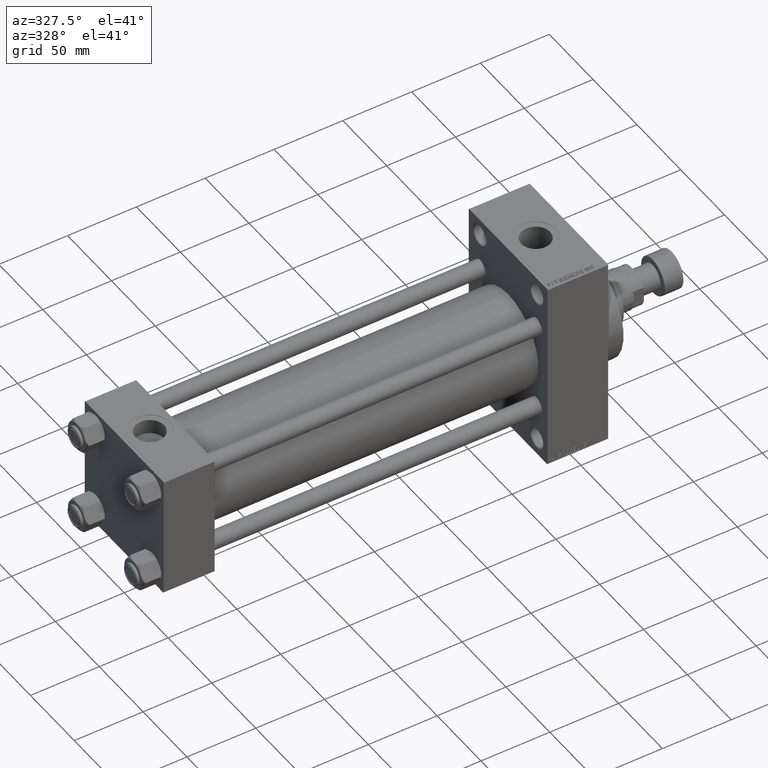
[diagram: clean part render]
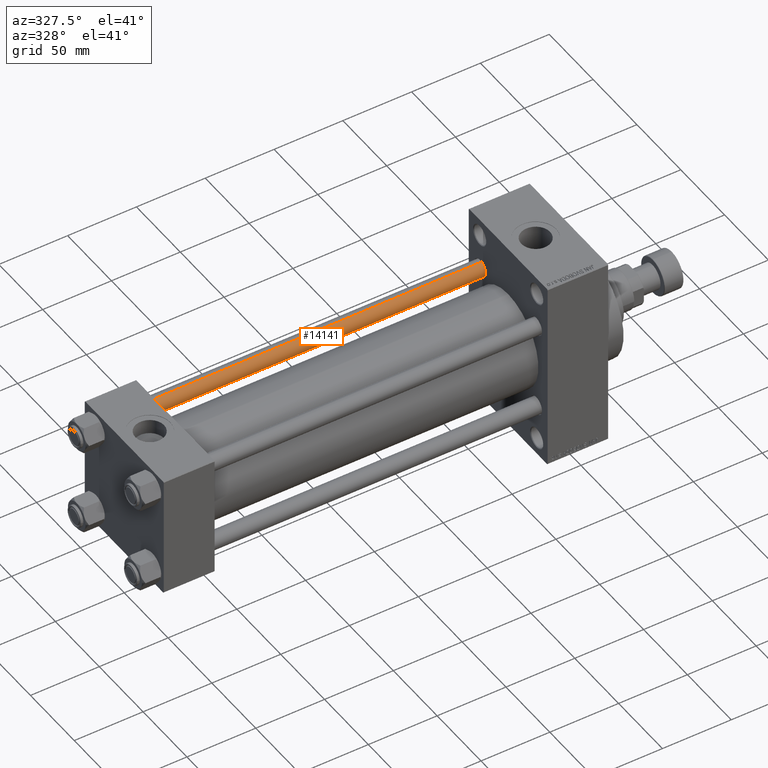
[diagram: same view with one face highlighted and labeled with its STEP entity id]
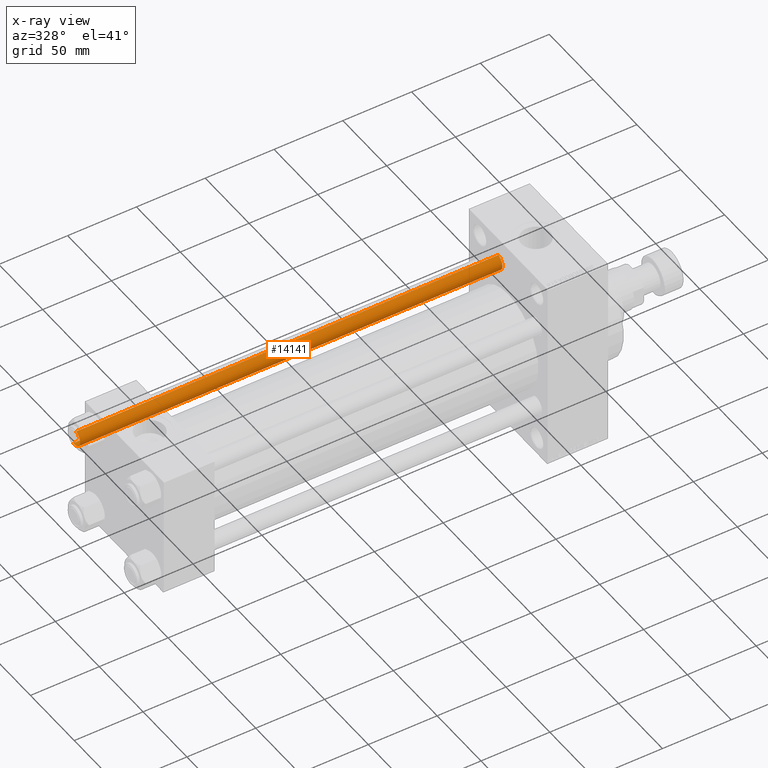
[diagram: x-ray of the same camera — body ghosted, the highlighted face saturated]
A machine part, auxiliary view. The second image highlights one B-rep face of the part: STEP entity #14141.
The next image is the same camera in x-ray: the body ghosted, the highlighted face saturated — about 0% of this face is hidden behind the body in this view.
In plain terms, the highlighted cylindrical surface (edge-blend (fillet) strip) has radius 6 mm, axis along (-1, -0, 0).
Its self-contained STEP definition (entity closure, byte-faithful):
#2560 = AXIS2_PLACEMENT_3D ( 'NONE', #46449, #16259, #31092 ) ;
#2842 = VECTOR ( 'NONE', #36865, 1000.000000000000000 ) ;
#5166 = EDGE_CURVE ( 'NONE', #42485, #48154, #44341, .T. ) ;
#5844 = EDGE_LOOP ( 'NONE', ( #45467, #43744, #14424, #41385 ) ) ;
#9506 = CIRCLE ( 'NONE', #18343, 6.000000000000000888 ) ;
#9859 = LINE ( 'NONE', #10604, #15223 ) ;
#10604 = CARTESIAN_POINT ( 'NONE',  ( 6.000000000000000888, 7.347880794884120722E-16, 308.0000000000000000 ) ) ;
#11873 = VERTEX_POINT ( 'NONE', #13697 ) ;
#13697 = CARTESIAN_POINT ( 'NONE',  ( 6.000000000000000888, 7.347880794884120722E-16, 307.4999999999999432 ) ) ;
#14141 = ADVANCED_FACE ( 'NONE', ( #31694 ), #39500, .T. ) ;
#14424 = ORIENTED_EDGE ( 'NONE', *, *, #16887, .T. ) ;
#15223 = VECTOR ( 'NONE', #37271, 1000.000000000000000 ) ;
#15695 = CARTESIAN_POINT ( 'NONE',  ( 0.000000000000000000, 0.000000000000000000, 307.4999999999999432 ) ) ;
#16259 = DIRECTION ( 'NONE',  ( -0.000000000000000000, -0.000000000000000000, 1.000000000000000000 ) ) ;
#16887 = EDGE_CURVE ( 'NONE', #21264, #42485, #41145, .T. ) ;
#18059 = AXIS2_PLACEMENT_3D ( 'NONE', #28176, #20887, #20643 ) ;
#18343 = AXIS2_PLACEMENT_3D ( 'NONE', #15695, #46131, #31761 ) ;
#20643 = DIRECTION ( 'NONE',  ( -1.000000000000000000, 0.000000000000000000, 0.000000000000000000 ) ) ;
#20887 = DIRECTION ( 'NONE',  ( -0.000000000000000000, -0.000000000000000000, -1.000000000000000000 ) ) ;
#21264 = VERTEX_POINT ( 'NONE', #40670 ) ;
#21773 = CARTESIAN_POINT ( 'NONE',  ( -6.000000000000000888, 0.000000000000000000, 308.0000000000000000 ) ) ;
#28176 = CARTESIAN_POINT ( 'NONE',  ( 0.000000000000000000, 0.000000000000000000, 308.0000000000000000 ) ) ;
#28386 = CARTESIAN_POINT ( 'NONE',  ( -6.000000000000000888, 0.000000000000000000, 0.5000000000000559552 ) ) ;
#28645 = EDGE_CURVE ( 'NONE', #11873, #21264, #9506, .T. ) ;
#29224 = CARTESIAN_POINT ( 'NONE',  ( 6.000000000000000888, 7.347880794884120722E-16, 0.5000000000000559552 ) ) ;
#31092 = DIRECTION ( 'NONE',  ( 1.000000000000000000, 0.000000000000000000, 0.000000000000000000 ) ) ;
#31694 = FACE_OUTER_BOUND ( 'NONE', #5844, .T. ) ;
#31761 = DIRECTION ( 'NONE',  ( 1.000000000000000000, 0.000000000000000000, 0.000000000000000000 ) ) ;
#35014 = EDGE_CURVE ( 'NONE', #11873, #48154, #9859, .T. ) ;
#36865 = DIRECTION ( 'NONE',  ( -0.000000000000000000, -0.000000000000000000, -1.000000000000000000 ) ) ;
#37271 = DIRECTION ( 'NONE',  ( -0.000000000000000000, -0.000000000000000000, -1.000000000000000000 ) ) ;
#39500 = CYLINDRICAL_SURFACE ( 'NONE', #18059, 6.000000000000000888 ) ;
#40670 = CARTESIAN_POINT ( 'NONE',  ( -6.000000000000000888, 0.000000000000000000, 307.4999999999999432 ) ) ;
#41145 = LINE ( 'NONE', #21773, #2842 ) ;
#41385 = ORIENTED_EDGE ( 'NONE', *, *, #5166, .T. ) ;
#42485 = VERTEX_POINT ( 'NONE', #28386 ) ;
#43744 = ORIENTED_EDGE ( 'NONE', *, *, #28645, .T. ) ;
#44341 = CIRCLE ( 'NONE', #2560, 6.000000000000000888 ) ;
#45467 = ORIENTED_EDGE ( 'NONE', *, *, #35014, .F. ) ;
#46131 = DIRECTION ( 'NONE',  ( 0.000000000000000000, 0.000000000000000000, -1.000000000000000000 ) ) ;
#46449 = CARTESIAN_POINT ( 'NONE',  ( 0.000000000000000000, 0.000000000000000000, 0.5000000000000559552 ) ) ;
#48154 = VERTEX_POINT ( 'NONE', #29224 ) ;